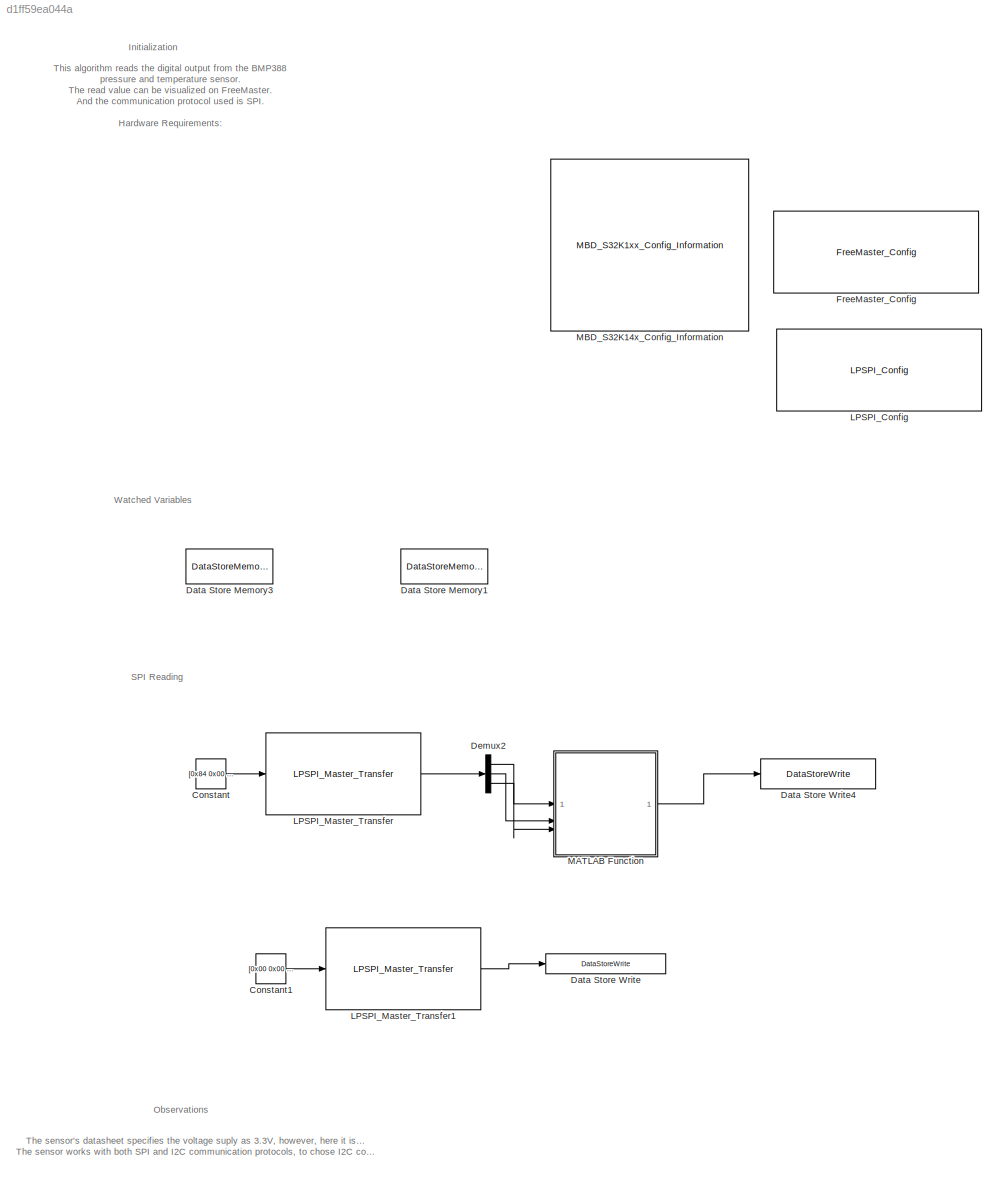
MODEL slx_d1ff59ea044a
KIND model
CONFIG AbsTol = auto
CONFIG EnableMultiTasking = on
CONFIG FixedStep = auto
CONFIG InitFcn = mbd_s32k_consistency_checks(bdroot(gcs));
CONFIG MaxStep = auto
CONFIG MinStep = auto
CONFIG RelTol = 1e-3
CONFIG SampleTimeConstraint = Unconstrained
CONFIG SolverName = FixedStepDiscrete
CONFIG StartTime = 0.0
CONFIG StopTime = inf
WORKSPACE source: mxarray member
WORKSPACE mwTaskManagerKernelLatency = 1e-06
BLOCK [Constant] Constant
  Commented = on
  OutDataTypeStr = uint8
  Value = [0x84 0x00 0x00]
BLOCK [Constant] Constant1
  OutDataTypeStr = uint8
  Value = [0x00 0x00 0x00]
BLOCK [DataStoreMemory] Data Store Memory1
  DataStoreName = pressure_digital1
  InitialValue = zeros(1,3)
  OutDataTypeStr = uint8
  ShowAdditionalParam = off
  StateMustResolveToSignalObject = on
  WriteAfterWriteMsg = warning
BLOCK [DataStoreMemory] Data Store Memory3
  DataStoreName = pressure_digital
  OutDataTypeStr = uint32
  ShowAdditionalParam = off
  StateMustResolveToSignalObject = on
  WriteAfterWriteMsg = warning
BLOCK [DataStoreWrite] Data Store Write
  DataStoreName = pressure_digital1
  IndexOptions = Index vector (dialog)
  Indices = 1
  OutputSizes = 1
BLOCK [DataStoreWrite] Data Store Write4
  Commented = on
  DataStoreName = pressure_digital
  IndexOptions = Index vector (dialog)
  Indices = 1
  OutputSizes = 1
BLOCK [Demux] Demux2
  Commented = on
  Outputs = 3
BLOCK [Reference] FreeMaster_Config  REF=mbd_s32k1xx_ec_toolbox/Utility Blocks/FreeMaster_Config
  Commented = on
  SourceBlock = mbd_s32k1xx_ec_toolbox/Utility Blocks/FreeMaster_Config
  SourceType = fm_s32k_config
BLOCK [Reference] LPSPI_Config   REF=mbd_s32k1xx_ec_toolbox/Communication Blocks/SPI Blocks/LPSPI_Config

  SourceBlock = mbd_s32k1xx_ec_toolbox/Communication Blocks/SPI Blocks/LPSPI_Config
  SourceType = lpspi_s32k_config
BLOCK [Reference] LPSPI_Master_Transfer  REF=mbd_s32k1xx_ec_toolbox/Communication Blocks/SPI Blocks/LPSPI_Master_Transfer
  Commented = on
  SourceBlock = mbd_s32k1xx_ec_toolbox/Communication Blocks/SPI Blocks/LPSPI_Master_Transfer
  SourceType = lpspi_s32k_master_transfer
BLOCK [Reference] LPSPI_Master_Transfer1  REF=mbd_s32k1xx_ec_toolbox/Communication Blocks/SPI Blocks/LPSPI_Master_Transfer
  SourceBlock = mbd_s32k1xx_ec_toolbox/Communication Blocks/SPI Blocks/LPSPI_Master_Transfer
  SourceType = lpspi_s32k_master_transfer
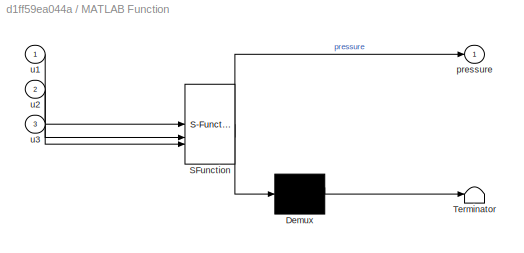
BLOCK [SubSystem] MATLAB Function
  Commented = on
  ErrorFcn = Stateflow.Translate.translate
  PermitHierarchicalResolution = ExplicitOnly
  SFBlockType = MATLAB Function
  TreatAsAtomicUnit = on
BLOCK [Demux] MATLAB Function/ Demux 
  Outputs = 1
BLOCK [S-Function] MATLAB Function/ SFunction 
  EnableBusSupport = on
  FunctionName = sf_sfun
  PortCounts = [3 2]
  SFcnIsStateOwnerBlock = off
  SFunctionDeploymentMode = off
  Tag = Stateflow S-Function 2
BLOCK [Terminator] MATLAB Function/ Terminator 
BLOCK [Outport] MATLAB Function/pressure
  VectorParamsAs1DForOutWhenUnconnected = off
BLOCK [Inport] MATLAB Function/u1
BLOCK [Inport] MATLAB Function/u2
  Port = 2
BLOCK [Inport] MATLAB Function/u3
  Port = 3
BLOCK [Reference] MBD_S32K14x_Config_Information  REF=mbd_s32k1xx_ec_toolbox/MBD_S32K1xx_Config_Information
  Priority = 0
  SourceBlock = mbd_s32k1xx_ec_toolbox/MBD_S32K1xx_Config_Information
  SourceType = MBDTBX_EC_S32K
ANNOTATION (root): Initialization
ANNOTATION (root): Observations
ANNOTATION (root): SPI Reading
ANNOTATION (root): The sensor's datasheet specifies the voltage suply as 3.3V, however, here it is fed with 5V because the Adafruit board has an internal 3.3V regulator. The sensor works with both SPI and I2C communication protocols, to chose I2C connect CSB to Vdd, and for SPI, connect it to GND.
ANNOTATION (root): This algorithm reads the digital output from the BMP388 pressure and temperature sensor. The read value can be visualized on FreeMaster. And the communication protocol used is SPI. Hardware Requirements: - S32K144 board - BMP388 (Sensor's board) Before running this, type on the Command Line: load 'Init_Pressure_Variables' Pin connections: Sensor | Board | Function 24 | GND | GND 21 | PTB4 | SPI - ...<+142ch>
ANNOTATION (root): Watched Variables
LINE Constant1:1 -> LPSPI_Master_Transfer1:1
LINE Constant:1 -> LPSPI_Master_Transfer:1
LINE Demux2:1 -> MATLAB Function:1
LINE Demux2:2 -> MATLAB Function:2
LINE Demux2:3 -> MATLAB Function:3
LINE LPSPI_Master_Transfer1:1 -> Data Store Write:1
LINE LPSPI_Master_Transfer:1 -> Demux2:1
LINE MATLAB Function:1 -> Data Store Write4:1
CHART MATLAB Function states=1 transitions=1
  STATE_LABEL 'eML_blk_kernel()'
  STATE_LABEL "SCRIPT:\nfunction pressure  = data_mask(u1, u2, u3)\n\n\nu = [u3, u2, u1];\n\nu_bin_mat = int2bit(u, 8);\nu_bin_vec = (reshape(u_bin_mat, 1, []))';\n\ndata1 = bit2int(u_bin_vec,24, true);\n\npressure = data1; %0.66\n\n"
CHART  states=0 transitions=0
